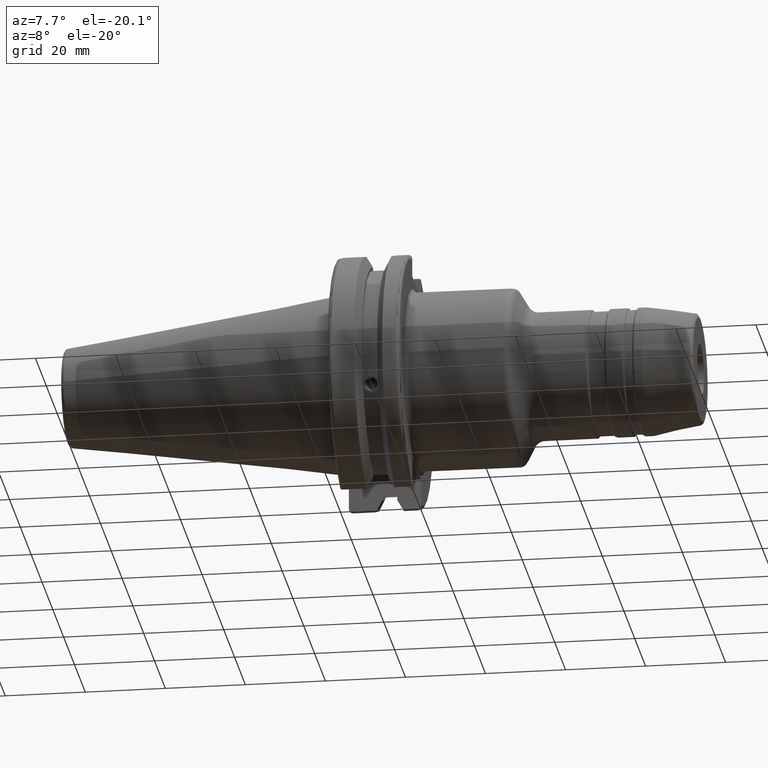
[diagram: clean part render]
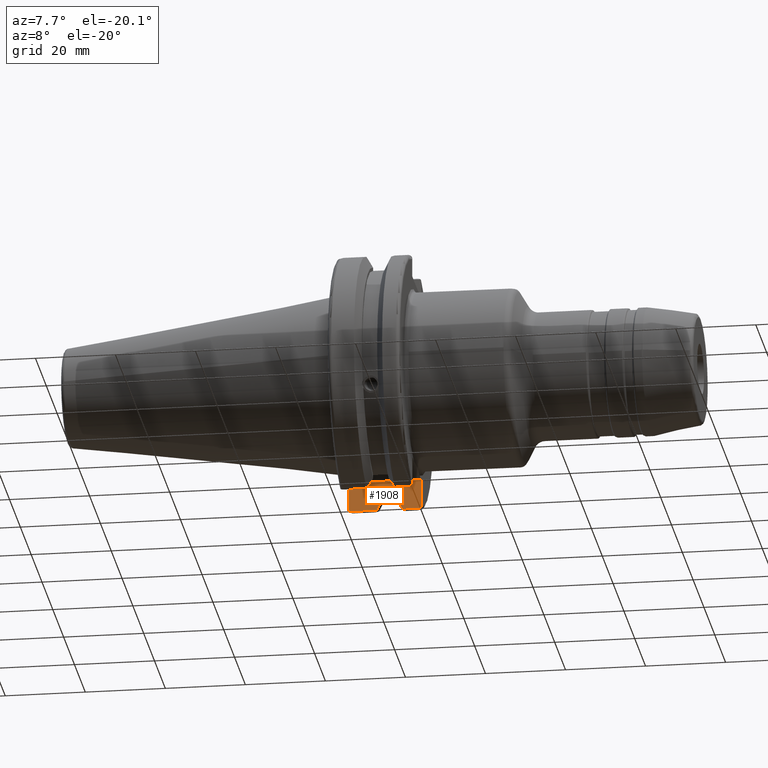
[diagram: same view with one face highlighted and labeled with its STEP entity id]
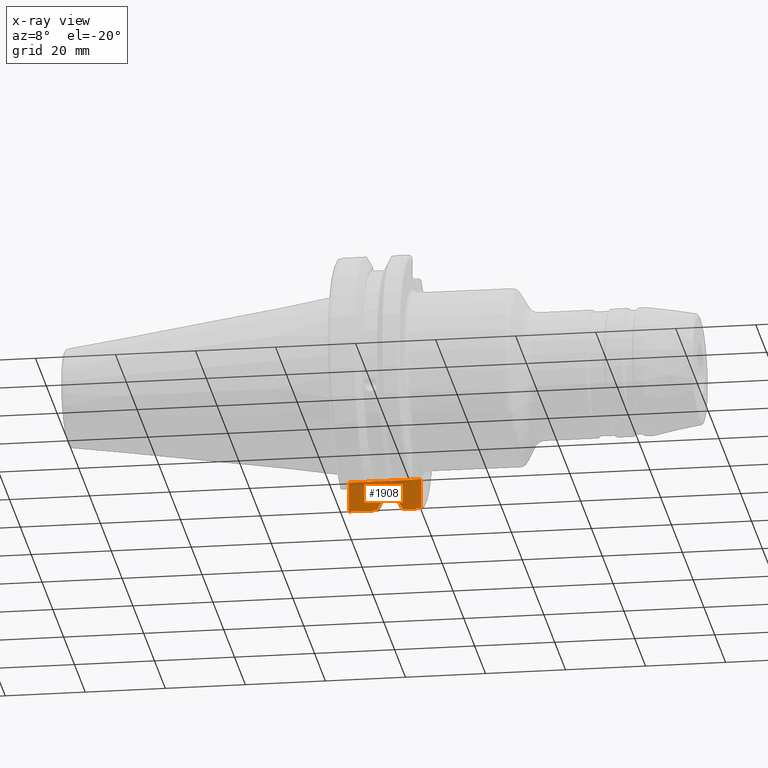
[diagram: x-ray of the same camera — body ghosted, the highlighted face saturated]
A machine part, auxiliary view. The second image highlights one B-rep face of the part: STEP entity #1908.
The next image is the same camera in x-ray: the body ghosted, the highlighted face saturated — about 5% of this face is hidden behind the body in this view.
In plain terms, the highlighted planar face has unit normal (-0, 1, 0).
Its self-contained STEP definition (entity closure, byte-faithful):
#19=(
BOUNDED_CURVE()
B_SPLINE_CURVE(2,(#3386,#3387,#3388),.UNSPECIFIED.,.F.,.F.)
B_SPLINE_CURVE_WITH_KNOTS((3,3),(0.,0.276549142795978),.UNSPECIFIED.)
CURVE()
GEOMETRIC_REPRESENTATION_ITEM()
RATIONAL_B_SPLINE_CURVE((1.,1.00095203903289,1.00031614444804))
REPRESENTATION_ITEM('')
);
#29=(
BOUNDED_CURVE()
B_SPLINE_CURVE(2,(#3691,#3692,#3693),.UNSPECIFIED.,.F.,.F.)
B_SPLINE_CURVE_WITH_KNOTS((3,3),(0.0550586467392263,0.331607789535849),
 .UNSPECIFIED.)
CURVE()
GEOMETRIC_REPRESENTATION_ITEM()
RATIONAL_B_SPLINE_CURVE((1.00031614444967,1.00095203903781,1.))
REPRESENTATION_ITEM('')
);
#70=B_SPLINE_CURVE_WITH_KNOTS('',3,(#3446,#3447,#3448,#3449,#3450,#3451),
 .UNSPECIFIED.,.F.,.F.,(4,2,4),(0.452741154494498,0.491581665024871,0.505824174364157),
 .UNSPECIFIED.);
#84=B_SPLINE_CURVE_WITH_KNOTS('',3,(#3651,#3652,#3653,#3654,#3655,#3656),
 .UNSPECIFIED.,.F.,.F.,(4,2,4),(0.0977210450333167,0.111963554372601,0.150804064902975),
 .UNSPECIFIED.);
#123=PLANE('',#2168);
#206=LINE('',#3407,#299);
#207=LINE('',#3411,#300);
#208=LINE('',#3415,#301);
#214=LINE('',#3474,#307);
#240=LINE('',#3618,#333);
#245=LINE('',#3659,#338);
#251=LINE('',#3689,#344);
#252=LINE('',#3694,#345);
#299=VECTOR('',#2579,10.);
#300=VECTOR('',#2584,10.);
#301=VECTOR('',#2589,10.);
#307=VECTOR('',#2621,10.);
#333=VECTOR('',#2671,10.);
#338=VECTOR('',#2686,10.);
#344=VECTOR('',#2722,10.);
#345=VECTOR('',#2723,10.);
#454=FACE_OUTER_BOUND('',#572,.T.);
#572=EDGE_LOOP('',(#1685,#1686,#1687,#1688,#1689,#1690,#1691,#1692,#1693,
#1694,#1695,#1696));
#848=VERTEX_POINT('',#3383);
#849=VERTEX_POINT('',#3385);
#854=VERTEX_POINT('',#3405);
#855=VERTEX_POINT('',#3409);
#856=VERTEX_POINT('',#3413);
#864=VERTEX_POINT('',#3443);
#865=VERTEX_POINT('',#3445);
#868=VERTEX_POINT('',#3472);
#899=VERTEX_POINT('',#3615);
#900=VERTEX_POINT('',#3617);
#906=VERTEX_POINT('',#3642);
#913=VERTEX_POINT('',#3690);
#1093=EDGE_CURVE('',#848,#849,#19,.T.);
#1100=EDGE_CURVE('',#854,#848,#206,.T.);
#1102=EDGE_CURVE('',#855,#854,#207,.T.);
#1104=EDGE_CURVE('',#856,#855,#208,.T.);
#1115=EDGE_CURVE('',#864,#865,#70,.T.);
#1120=EDGE_CURVE('',#868,#864,#214,.T.);
#1164=EDGE_CURVE('',#899,#900,#240,.T.);
#1173=EDGE_CURVE('',#906,#899,#84,.T.);
#1175=EDGE_CURVE('',#849,#906,#245,.T.);
#1188=EDGE_CURVE('',#868,#900,#251,.T.);
#1189=EDGE_CURVE('',#913,#856,#29,.T.);
#1190=EDGE_CURVE('',#865,#913,#252,.T.);
#1685=ORIENTED_EDGE('',*,*,#1115,.F.);
#1686=ORIENTED_EDGE('',*,*,#1120,.F.);
#1687=ORIENTED_EDGE('',*,*,#1188,.T.);
#1688=ORIENTED_EDGE('',*,*,#1164,.F.);
#1689=ORIENTED_EDGE('',*,*,#1173,.F.);
#1690=ORIENTED_EDGE('',*,*,#1175,.F.);
#1691=ORIENTED_EDGE('',*,*,#1093,.F.);
#1692=ORIENTED_EDGE('',*,*,#1100,.F.);
#1693=ORIENTED_EDGE('',*,*,#1102,.F.);
#1694=ORIENTED_EDGE('',*,*,#1104,.F.);
#1695=ORIENTED_EDGE('',*,*,#1189,.F.);
#1696=ORIENTED_EDGE('',*,*,#1190,.F.);
#1908=ADVANCED_FACE('',(#454),#123,.F.);
#2168=AXIS2_PLACEMENT_3D('',#3688,#2720,#2721);
#2579=DIRECTION('',(0.,0.,-1.));
#2584=DIRECTION('',(-1.,0.,0.));
#2589=DIRECTION('',(0.,0.,1.));
#2621=DIRECTION('',(0.,0.,-1.));
#2671=DIRECTION('',(0.,0.,1.));
#2686=DIRECTION('',(-1.,-1.16558847729675E-16,0.));
#2720=DIRECTION('center_axis',(-1.16558847729675E-16,1.,0.));
#2721=DIRECTION('ref_axis',(1.,1.16558847729675E-16,0.));
#2722=DIRECTION('',(-1.,-1.16558847729675E-16,0.));
#2723=DIRECTION('',(-1.,-1.16558847729675E-16,0.));
#3383=CARTESIAN_POINT('',(9.261,8.19,-27.7771386827498));
#3385=CARTESIAN_POINT('',(7.92858530351256,8.19,-30.1755016258903));
#3386=CARTESIAN_POINT('Ctrl Pts',(9.261,8.19,-27.7771386827498));
#3387=CARTESIAN_POINT('Ctrl Pts',(8.62236356152209,8.19,-28.9303689539738));
#3388=CARTESIAN_POINT('Ctrl Pts',(7.92858530351256,8.19,-30.1755016258903));
#3405=CARTESIAN_POINT('',(9.261,8.19,-26.932255754021));
#3407=CARTESIAN_POINT('',(9.261,8.18999999999999,-11.3));
#3409=CARTESIAN_POINT('',(13.091,8.19,-26.932255754021));
#3411=CARTESIAN_POINT('',(11.176,8.19,-26.932255754021));
#3413=CARTESIAN_POINT('',(13.091,8.19,-27.7771386827498));
#3415=CARTESIAN_POINT('',(13.091,8.19,-11.3));
#3443=CARTESIAN_POINT('',(19.05,8.19,-29.6392712461019));
#3445=CARTESIAN_POINT('',(18.9058722749097,8.19,-30.1755016258903));
#3446=CARTESIAN_POINT('Ctrl Pts',(19.05,8.19,-29.6392712461019));
#3447=CARTESIAN_POINT('Ctrl Pts',(19.05,8.19,-29.7687396145364));
#3448=CARTESIAN_POINT('Ctrl Pts',(19.020485567083,8.19,-29.9212724384851));
#3449=CARTESIAN_POINT('Ctrl Pts',(18.9539643471756,8.19,-30.0852355256475));
#3450=CARTESIAN_POINT('Ctrl Pts',(18.9318163728133,8.19,-30.131014531546));
#3451=CARTESIAN_POINT('Ctrl Pts',(18.9058722749097,8.19,-30.1755016258903));
#3472=CARTESIAN_POINT('',(19.05,8.19,-22.6));
#3474=CARTESIAN_POINT('',(19.05,8.19,-11.3));
#3615=CARTESIAN_POINT('',(1.,8.18999999999999,-29.6392712461019));
#3617=CARTESIAN_POINT('',(0.999999999999998,8.19,-22.6));
#3618=CARTESIAN_POINT('',(1.,8.18999999999999,-11.3));
#3642=CARTESIAN_POINT('',(1.14412772509028,8.19,-30.1755016258903));
#3651=CARTESIAN_POINT('Ctrl Pts',(1.14412772509028,8.19,-30.1755016258903));
#3652=CARTESIAN_POINT('Ctrl Pts',(1.11818362718666,8.19,-30.131014531546));
#3653=CARTESIAN_POINT('Ctrl Pts',(1.09603565282437,8.19,-30.0852355256475));
#3654=CARTESIAN_POINT('Ctrl Pts',(1.02951443291695,8.19,-29.9212724384851));
#3655=CARTESIAN_POINT('Ctrl Pts',(1.,8.19,-29.7687396145364));
#3656=CARTESIAN_POINT('Ctrl Pts',(1.,8.19,-29.6392712461019));
#3659=CARTESIAN_POINT('',(4.32491661546218,8.19,-30.1755016258903));
#3688=CARTESIAN_POINT('Origin',(0.999999999999999,8.19,-22.6));
#3689=CARTESIAN_POINT('',(20.05,8.19,-22.6));
#3690=CARTESIAN_POINT('',(14.4234146964874,8.19,-30.1755016258903));
#3691=CARTESIAN_POINT('Ctrl Pts',(14.4234146964874,8.19,-30.1755016258903));
#3692=CARTESIAN_POINT('Ctrl Pts',(13.7296364384731,8.19,-28.9303689539651));
#3693=CARTESIAN_POINT('Ctrl Pts',(13.091,8.19,-27.7771386827498));
#3694=CARTESIAN_POINT('',(16.8760833845378,8.19,-30.1755016258903));